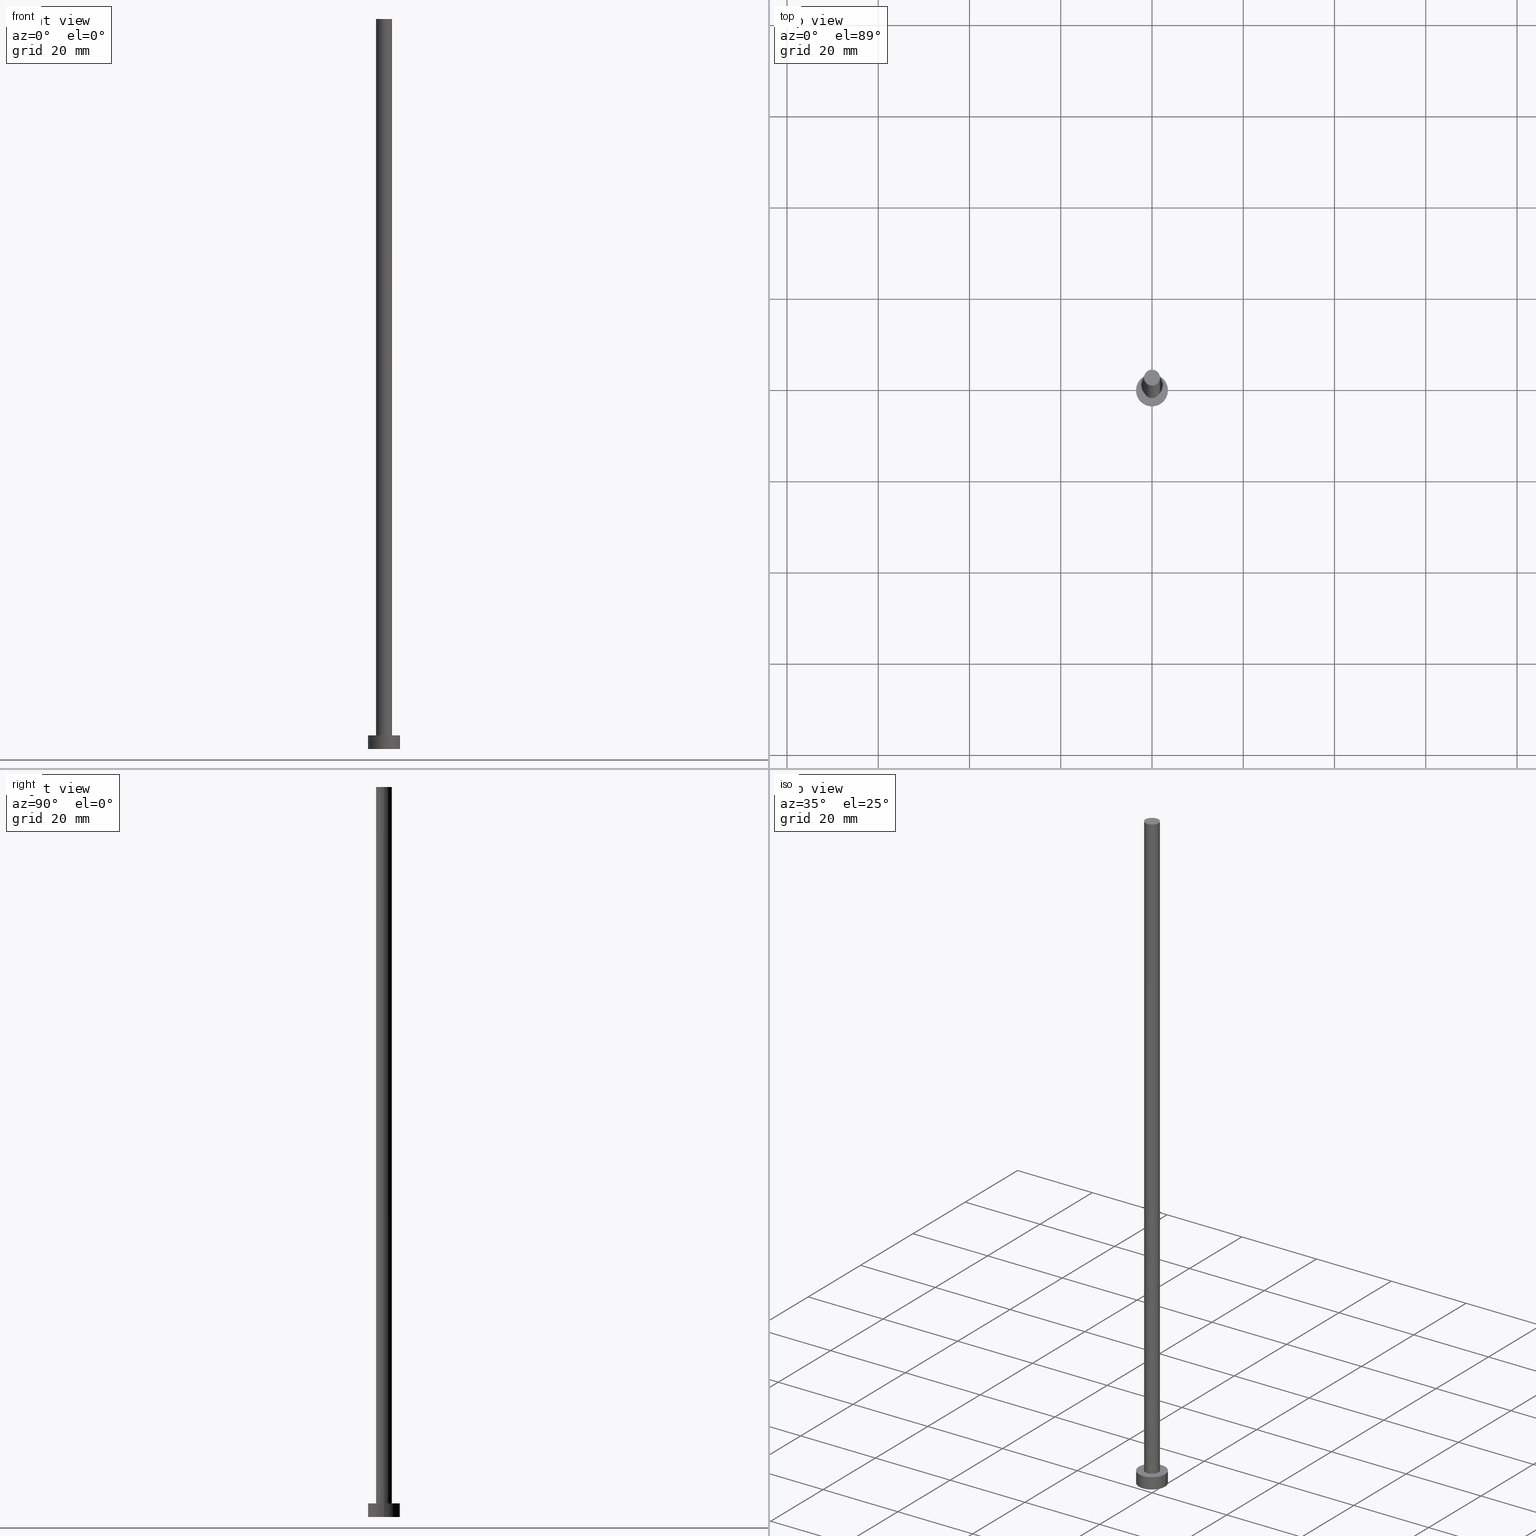
[diagram: canonical four-view strip — front | top / right | iso, engineering-drawing reading convention]
A machine part, canonical four-view strip (front | top / right | iso — engineering-drawing reading convention). The complete STEP part file that produces these views, byte-faithful:
ISO-10303-21;
HEADER;
FILE_DESCRIPTION (( 'STEP AP203' ),
    '1' );
FILE_NAME ('5313.STEP',
    '2023-02-13T13:59:21',
    ( '' ),
    ( '' ),
    'SwSTEP 2.0',
    'SolidWorks 2019',
    '' );
FILE_SCHEMA (( 'CONFIG_CONTROL_DESIGN' ));
ENDSEC;

DATA;
#1 = ORIENTED_EDGE ( 'NONE', *, *, #126, .F. ) ;
#2 = APPROVAL_STATUS ( 'not_yet_approved' ) ;
#3 = AXIS2_PLACEMENT_3D ( 'NONE', #159, #213, #56 ) ;
#4 = ORIENTED_EDGE ( 'NONE', *, *, #37, .T. ) ;
#5 = CC_DESIGN_PERSON_AND_ORGANIZATION_ASSIGNMENT ( #181, #119, ( #169 ) ) ;
#6 = PRODUCT ( '5313', '5313', '', ( #155 ) ) ;
#7 = DIRECTION ( 'NONE',  ( 0.000000000000000000, 0.000000000000000000, 1.000000000000000000 ) ) ;
#8 = DIRECTION ( 'NONE',  ( -0.000000000000000000, -0.000000000000000000, -1.000000000000000000 ) ) ;
#9 = FACE_OUTER_BOUND ( 'NONE', #250, .T. ) ;
#10 = VECTOR ( 'NONE', #193, 1000.000000000000000 ) ;
#11 = DIRECTION ( 'NONE',  ( 0.000000000000000000, 0.000000000000000000, 1.000000000000000000 ) ) ;
#12 = CC_DESIGN_PERSON_AND_ORGANIZATION_ASSIGNMENT ( #190, #210, ( #27 ) ) ;
#13 = ORGANIZATION ( 'NEUR�EN�', 'NEUR�EN�', '' ) ;
#14 = ADVANCED_FACE ( 'NONE', ( #36 ), #132, .T. ) ;
#15 = PRODUCT_DEFINITION ( 'NEZN�M�', '', #169, #245 ) ;
#16 = FACE_OUTER_BOUND ( 'NONE', #82, .T. ) ;
#17 = DIRECTION ( 'NONE',  ( 0.000000000000000000, 0.000000000000000000, 1.000000000000000000 ) ) ;
#18 = ORIENTED_EDGE ( 'NONE', *, *, #52, .F. ) ;
#19 = DIRECTION ( 'NONE',  ( 1.000000000000000000, 0.000000000000000000, 0.000000000000000000 ) ) ;
#20 = AXIS2_PLACEMENT_3D ( 'NONE', #230, #196, #78 ) ;
#21 = CC_DESIGN_DATE_AND_TIME_ASSIGNMENT ( #223, #43, ( #15 ) ) ;
#22 = EDGE_LOOP ( 'NONE', ( #167, #152 ) ) ;
#23 = PERSON_AND_ORGANIZATION ( #131, #13 ) ;
#24 = VERTEX_POINT ( 'NONE', #84 ) ;
#25 = EDGE_CURVE ( 'NONE', #60, #252, #73, .T. ) ;
#26 = APPLICATION_PROTOCOL_DEFINITION ( 'international standard', 'config_control_design', 1994, #31 ) ;
#27 = SECURITY_CLASSIFICATION ( '', '', #89 ) ;
#28 = APPROVAL_DATE_TIME ( #203, #204 ) ;
#29 = APPROVAL_DATE_TIME ( #174, #55 ) ;
#30 = CARTESIAN_POINT ( 'NONE',  ( 0.000000000000000000, 0.000000000000000000, 0.000000000000000000 ) ) ;
#31 = APPLICATION_CONTEXT ( 'configuration controlled 3d designs of mechanical parts and assemblies' ) ;
#32 = AXIS2_PLACEMENT_3D ( 'NONE', #33, #106, #19 ) ;
#33 = CARTESIAN_POINT ( 'NONE',  ( 0.000000000000000000, 0.000000000000000000, 160.0000000000000000 ) ) ;
#34 = VERTEX_POINT ( 'NONE', #102 ) ;
#35 = FACE_OUTER_BOUND ( 'NONE', #63, .T. ) ;
#36 = FACE_OUTER_BOUND ( 'NONE', #238, .T. ) ;
#37 = EDGE_CURVE ( 'NONE', #34, #252, #41, .T. ) ;
#38 = ORIENTED_EDGE ( 'NONE', *, *, #37, .F. ) ;
#39 = CALENDAR_DATE ( 2023, 13, 2 ) ;
#40 = CC_DESIGN_PERSON_AND_ORGANIZATION_ASSIGNMENT ( #225, #46, ( #169 ) ) ;
#41 = LINE ( 'NONE', #177, #221 ) ;
#42 = CARTESIAN_POINT ( 'NONE',  ( 0.000000000000000000, 0.000000000000000000, 160.0000000000000000 ) ) ;
#43 = DATE_TIME_ROLE ( 'creation_date' ) ;
#44 = LOCAL_TIME ( 14, 59, 21.00000000000000000, #189 ) ;
#45 = DIRECTION ( 'NONE',  ( 0.000000000000000000, 0.000000000000000000, 1.000000000000000000 ) ) ;
#46 = PERSON_AND_ORGANIZATION_ROLE ( 'design_supplier' ) ;
#47 = CC_DESIGN_APPROVAL ( #55, ( #27 ) ) ;
#48 = CALENDAR_DATE ( 2023, 13, 2 ) ;
#49 = COORDINATED_UNIVERSAL_TIME_OFFSET ( 1, 0, .AHEAD. ) ;
#50 = AXIS2_PLACEMENT_3D ( 'NONE', #146, #229, #128 ) ;
#51 = CARTESIAN_POINT ( 'NONE',  ( 1.750000000000000000, 2.143131898507868297E-16, 3.000000000000000000 ) ) ;
#52 = EDGE_CURVE ( 'NONE', #252, #60, #80, .T. ) ;
#53 = DIRECTION ( 'NONE',  ( -0.000000000000000000, -0.000000000000000000, -1.000000000000000000 ) ) ;
#54 = DIRECTION ( 'NONE',  ( 0.000000000000000000, 0.000000000000000000, 1.000000000000000000 ) ) ;
#55 = APPROVAL ( #122, 'NEUR�EN�' ) ;
#56 = DIRECTION ( 'NONE',  ( 1.000000000000000000, 0.000000000000000000, 0.000000000000000000 ) ) ;
#57 = ORIENTED_EDGE ( 'NONE', *, *, #254, .T. ) ;
#58 = COORDINATED_UNIVERSAL_TIME_OFFSET ( 1, 0, .AHEAD. ) ;
#59 = MANIFOLD_SOLID_BREP ( 'P�idat vysunut�m3', #185 ) ;
#60 = VERTEX_POINT ( 'NONE', #118 ) ;
#61 = DIRECTION ( 'NONE',  ( -0.000000000000000000, -0.000000000000000000, -1.000000000000000000 ) ) ;
#62 = AXIS2_PLACEMENT_3D ( 'NONE', #42, #173, #151 ) ;
#63 = EDGE_LOOP ( 'NONE', ( #149, #57 ) ) ;
#64 = APPLICATION_PROTOCOL_DEFINITION ( 'international standard', 'config_control_design', 1994, #120 ) ;
#65 = PRODUCT_RELATED_PRODUCT_CATEGORY ( 'detail', '', ( #6 ) ) ;
#66 = SHAPE_DEFINITION_REPRESENTATION ( #117, #233 ) ;
#67 = AXIS2_PLACEMENT_3D ( 'NONE', #94, #7, #74 ) ;
#68 = DIRECTION ( 'NONE',  ( -1.000000000000000000, 0.000000000000000000, 0.000000000000000000 ) ) ;
#69 = ADVANCED_FACE ( 'NONE', ( #9 ), #157, .T. ) ;
#70 = CIRCLE ( 'NONE', #201, 1.750000000000000000 ) ;
#71 = AXIS2_PLACEMENT_3D ( 'NONE', #127, #17, #104 ) ;
#72 = CIRCLE ( 'NONE', #3, 3.500000000000000444 ) ;
#73 = CIRCLE ( 'NONE', #71, 3.500000000000000444 ) ;
#74 = DIRECTION ( 'NONE',  ( 1.000000000000000000, 0.000000000000000000, -0.000000000000000000 ) ) ;
#75 = PLANE ( 'NONE',  #50 ) ;
#76 = DIRECTION ( 'NONE',  ( -1.000000000000000000, 0.000000000000000000, 0.000000000000000000 ) ) ;
#77 = VECTOR ( 'NONE', #53, 1000.000000000000000 ) ;
#78 = DIRECTION ( 'NONE',  ( -1.000000000000000000, 0.000000000000000000, 0.000000000000000000 ) ) ;
#79 = ORIENTED_EDGE ( 'NONE', *, *, #142, .F. ) ;
#80 = CIRCLE ( 'NONE', #156, 3.500000000000000444 ) ;
#81 = PERSON_AND_ORGANIZATION_ROLE ( 'creator' ) ;
#82 = EDGE_LOOP ( 'NONE', ( #144, #85, #154, #38 ) ) ;
#83 = DIRECTION ( 'NONE',  ( 1.000000000000000000, 0.000000000000000000, 0.000000000000000000 ) ) ;
#84 = CARTESIAN_POINT ( 'NONE',  ( -1.750000000000000000, 0.000000000000000000, 160.0000000000000000 ) ) ;
#85 = ORIENTED_EDGE ( 'NONE', *, *, #123, .T. ) ;
#86 = DIRECTION ( 'NONE',  ( -1.000000000000000000, 0.000000000000000000, 0.000000000000000000 ) ) ;
#87 =( NAMED_UNIT ( * ) SI_UNIT ( $, .STERADIAN. ) SOLID_ANGLE_UNIT ( ) );
#88 = ADVANCED_FACE ( 'NONE', ( #139 ), #212, .F. ) ;
#89 = SECURITY_CLASSIFICATION_LEVEL ( 'unclassified' ) ;
#90 = DIRECTION ( 'NONE',  ( 1.000000000000000000, 0.000000000000000000, -0.000000000000000000 ) ) ;
#91 = CC_DESIGN_PERSON_AND_ORGANIZATION_ASSIGNMENT ( #188, #224, ( #6 ) ) ;
#92 = CC_DESIGN_APPROVAL ( #116, ( #169 ) ) ;
#93 = DATE_TIME_ROLE ( 'classification_date' ) ;
#94 = CARTESIAN_POINT ( 'NONE',  ( 0.000000000000000000, 0.000000000000000000, 160.0000000000000000 ) ) ;
#95 = UNCERTAINTY_MEASURE_WITH_UNIT (LENGTH_MEASURE( 1.000000000000000082E-05 ), #200, 'distance_accuracy_value', 'NONE');
#96 = ADVANCED_FACE ( 'NONE', ( #184 ), #124, .T. ) ;
#97 = LOCAL_TIME ( 14, 59, 21.00000000000000000, #153 ) ;
#98 = APPROVAL_PERSON_ORGANIZATION ( #23, #204, #183 ) ;
#99 = DIRECTION ( 'NONE',  ( 0.000000000000000000, 0.000000000000000000, 1.000000000000000000 ) ) ;
#100 = AXIS2_PLACEMENT_3D ( 'NONE', #30, #11, #90 ) ;
#101 = CARTESIAN_POINT ( 'NONE',  ( 0.000000000000000000, 0.000000000000000000, 3.000000000000000000 ) ) ;
#102 = CARTESIAN_POINT ( 'NONE',  ( -3.500000000000000444, 0.000000000000000000, 3.000000000000000000 ) ) ;
#103 = CARTESIAN_POINT ( 'NONE',  ( -1.750000000000000000, 0.000000000000000000, 3.000000000000000000 ) ) ;
#104 = DIRECTION ( 'NONE',  ( 1.000000000000000000, 0.000000000000000000, 0.000000000000000000 ) ) ;
#105 = CIRCLE ( 'NONE', #32, 1.750000000000000000 ) ;
#106 = DIRECTION ( 'NONE',  ( 0.000000000000000000, 0.000000000000000000, 1.000000000000000000 ) ) ;
#107 = ORIENTED_EDGE ( 'NONE', *, *, #158, .T. ) ;
#108 = APPROVAL_STATUS ( 'not_yet_approved' ) ;
#109 = VERTEX_POINT ( 'NONE', #51 ) ;
#110 = ADVANCED_FACE ( 'NONE', ( #16 ), #160, .T. ) ;
#111 = APPROVAL_DATE_TIME ( #133, #116 ) ;
#112 = ORIENTED_EDGE ( 'NONE', *, *, #227, .T. ) ;
#113 = CC_DESIGN_APPROVAL ( #204, ( #15 ) ) ;
#114 = CALENDAR_DATE ( 2023, 13, 2 ) ;
#115 = DIRECTION ( 'NONE',  ( 1.000000000000000000, 0.000000000000000000, 0.000000000000000000 ) ) ;
#116 = APPROVAL ( #2, 'NEUR�EN�' ) ;
#117 = PRODUCT_DEFINITION_SHAPE ( 'NONE', 'NONE',  #15 ) ;
#118 = CARTESIAN_POINT ( 'NONE',  ( 3.500000000000000444, 4.286263797015737088E-16, 0.000000000000000000 ) ) ;
#119 = PERSON_AND_ORGANIZATION_ROLE ( 'creator' ) ;
#120 = APPLICATION_CONTEXT ( 'configuration controlled 3d designs of mechanical parts and assemblies' ) ;
#121 = AXIS2_PLACEMENT_3D ( 'NONE', #136, #226, #68 ) ;
#122 = APPROVAL_STATUS ( 'not_yet_approved' ) ;
#123 = EDGE_CURVE ( 'NONE', #179, #60, #191, .T. ) ;
#124 = PLANE ( 'NONE',  #67 ) ;
#125 = LINE ( 'NONE', #192, #77 ) ;
#126 = EDGE_CURVE ( 'NONE', #24, #199, #105, .T. ) ;
#127 = CARTESIAN_POINT ( 'NONE',  ( 0.000000000000000000, 0.000000000000000000, 0.000000000000000000 ) ) ;
#128 = DIRECTION ( 'NONE',  ( 1.000000000000000000, 0.000000000000000000, -0.000000000000000000 ) ) ;
#129 = DIRECTION ( 'NONE',  ( 1.000000000000000000, 0.000000000000000000, 0.000000000000000000 ) ) ;
#130 = CC_DESIGN_PERSON_AND_ORGANIZATION_ASSIGNMENT ( #236, #81, ( #15 ) ) ;
#131 = PERSON ( 'NEUR�EN�', 'NEUR�EN�', 'NEUR�EN�', ('NEUR�EN�'), ('NEUR�EN�'), ('NEUR�EN�') ) ;
#132 = CYLINDRICAL_SURFACE ( 'NONE', #145, 3.500000000000000444 ) ;
#133 = DATE_AND_TIME ( #39, #237 ) ;
#134 = VERTEX_POINT ( 'NONE', #103 ) ;
#135 = DIRECTION ( 'NONE',  ( 0.000000000000000000, 0.000000000000000000, 1.000000000000000000 ) ) ;
#136 = CARTESIAN_POINT ( 'NONE',  ( 0.000000000000000000, 0.000000000000000000, 160.0000000000000000 ) ) ;
#137 = CARTESIAN_POINT ( 'NONE',  ( 0.000000000000000000, 0.000000000000000000, 3.000000000000000000 ) ) ;
#138 = COORDINATED_UNIVERSAL_TIME_OFFSET ( 1, 0, .AHEAD. ) ;
#139 = FACE_OUTER_BOUND ( 'NONE', #235, .T. ) ;
#140 = CC_DESIGN_SECURITY_CLASSIFICATION ( #27, ( #169 ) ) ;
#141 = CYLINDRICAL_SURFACE ( 'NONE', #228, 1.750000000000000000 ) ;
#142 = EDGE_CURVE ( 'NONE', #34, #179, #72, .T. ) ;
#143 = LOCAL_TIME ( 14, 59, 21.00000000000000000, #138 ) ;
#144 = ORIENTED_EDGE ( 'NONE', *, *, #254, .F. ) ;
#145 = AXIS2_PLACEMENT_3D ( 'NONE', #219, #195, #76 ) ;
#146 = CARTESIAN_POINT ( 'NONE',  ( 0.000000000000000000, 0.000000000000000000, 3.000000000000000000 ) ) ;
#147 = ORIENTED_EDGE ( 'NONE', *, *, #25, .F. ) ;
#148 = CARTESIAN_POINT ( 'NONE',  ( -1.750000000000000000, 0.000000000000000000, 160.0000000000000000 ) ) ;
#149 = ORIENTED_EDGE ( 'NONE', *, *, #142, .T. ) ;
#150 = CIRCLE ( 'NONE', #62, 1.750000000000000000 ) ;
#151 = DIRECTION ( 'NONE',  ( 1.000000000000000000, 0.000000000000000000, 0.000000000000000000 ) ) ;
#152 = ORIENTED_EDGE ( 'NONE', *, *, #244, .T. ) ;
#153 = COORDINATED_UNIVERSAL_TIME_OFFSET ( 1, 0, .AHEAD. ) ;
#154 = ORIENTED_EDGE ( 'NONE', *, *, #25, .T. ) ;
#155 = MECHANICAL_CONTEXT ( 'NONE', #120, 'mechanical' ) ;
#156 = AXIS2_PLACEMENT_3D ( 'NONE', #232, #54, #187 ) ;
#157 = CYLINDRICAL_SURFACE ( 'NONE', #121, 1.750000000000000000 ) ;
#158 = EDGE_CURVE ( 'NONE', #199, #109, #125, .T. ) ;
#159 = CARTESIAN_POINT ( 'NONE',  ( 0.000000000000000000, 0.000000000000000000, 3.000000000000000000 ) ) ;
#160 = CYLINDRICAL_SURFACE ( 'NONE', #20, 3.500000000000000444 ) ;
#161 = LOCAL_TIME ( 14, 59, 21.00000000000000000, #49 ) ;
#162 = DIRECTION ( 'NONE',  ( -0.000000000000000000, -0.000000000000000000, -1.000000000000000000 ) ) ;
#163 = DIRECTION ( 'NONE',  ( 1.000000000000000000, 0.000000000000000000, 0.000000000000000000 ) ) ;
#164 = ORIENTED_EDGE ( 'NONE', *, *, #227, .F. ) ;
#165 = CC_DESIGN_DATE_AND_TIME_ASSIGNMENT ( #241, #93, ( #27 ) ) ;
#166 = DIRECTION ( 'NONE',  ( 0.000000000000000000, 0.000000000000000000, 1.000000000000000000 ) ) ;
#167 = ORIENTED_EDGE ( 'NONE', *, *, #126, .T. ) ;
#168 = ORIENTED_EDGE ( 'NONE', *, *, #52, .T. ) ;
#169 = PRODUCT_DEFINITION_FORMATION_WITH_SPECIFIED_SOURCE ( 'LIBOVOLN�', '', #6, .NOT_KNOWN. ) ;
#170 = CARTESIAN_POINT ( 'NONE',  ( 0.000000000000000000, 0.000000000000000000, 3.000000000000000000 ) ) ;
#171 = EDGE_CURVE ( 'NONE', #134, #109, #242, .T. ) ;
#172 = EDGE_LOOP ( 'NONE', ( #197, #1, #112, #182 ) ) ;
#173 = DIRECTION ( 'NONE',  ( 0.000000000000000000, 0.000000000000000000, 1.000000000000000000 ) ) ;
#174 = DATE_AND_TIME ( #48, #161 ) ;
#175 = ADVANCED_FACE ( 'NONE', ( #176, #35 ), #75, .T. ) ;
#176 = FACE_BOUND ( 'NONE', #180, .T. ) ;
#177 = CARTESIAN_POINT ( 'NONE',  ( -3.500000000000000444, 0.000000000000000000, 3.000000000000000000 ) ) ;
#178 = VECTOR ( 'NONE', #8, 1000.000000000000000 ) ;
#179 = VERTEX_POINT ( 'NONE', #248 ) ;
#180 = EDGE_LOOP ( 'NONE', ( #240, #217 ) ) ;
#181 = PERSON_AND_ORGANIZATION ( #131, #13 ) ;
#182 = ORIENTED_EDGE ( 'NONE', *, *, #171, .T. ) ;
#183 = APPROVAL_ROLE ( '' ) ;
#184 = FACE_OUTER_BOUND ( 'NONE', #22, .T. ) ;
#185 = CLOSED_SHELL ( 'NONE', ( #69, #110, #14, #175, #88, #209, #96 ) ) ;
#186 =( NAMED_UNIT ( * ) PLANE_ANGLE_UNIT ( ) SI_UNIT ( $, .RADIAN. ) );
#187 = DIRECTION ( 'NONE',  ( 1.000000000000000000, 0.000000000000000000, 0.000000000000000000 ) ) ;
#188 = PERSON_AND_ORGANIZATION ( #131, #13 ) ;
#189 = COORDINATED_UNIVERSAL_TIME_OFFSET ( 1, 0, .AHEAD. ) ;
#190 = PERSON_AND_ORGANIZATION ( #131, #13 ) ;
#191 = LINE ( 'NONE', #246, #10 ) ;
#192 = CARTESIAN_POINT ( 'NONE',  ( 1.750000000000000000, 2.143131898507868297E-16, 160.0000000000000000 ) ) ;
#193 = DIRECTION ( 'NONE',  ( -0.000000000000000000, -0.000000000000000000, -1.000000000000000000 ) ) ;
#194 = FACE_OUTER_BOUND ( 'NONE', #172, .T. ) ;
#195 = DIRECTION ( 'NONE',  ( -0.000000000000000000, -0.000000000000000000, -1.000000000000000000 ) ) ;
#196 = DIRECTION ( 'NONE',  ( -0.000000000000000000, -0.000000000000000000, -1.000000000000000000 ) ) ;
#197 = ORIENTED_EDGE ( 'NONE', *, *, #158, .F. ) ;
#198 = LINE ( 'NONE', #148, #178 ) ;
#199 = VERTEX_POINT ( 'NONE', #216 ) ;
#200 =( LENGTH_UNIT ( ) NAMED_UNIT ( * ) SI_UNIT ( .MILLI., .METRE. ) );
#201 = AXIS2_PLACEMENT_3D ( 'NONE', #137, #135, #115 ) ;
#202 = CARTESIAN_POINT ( 'NONE',  ( -3.500000000000000444, 0.000000000000000000, 0.000000000000000000 ) ) ;
#203 = DATE_AND_TIME ( #255, #143 ) ;
#204 = APPROVAL ( #108, 'NEUR�EN�' ) ;
#205 = APPROVAL_ROLE ( '' ) ;
#206 = AXIS2_PLACEMENT_3D ( 'NONE', #239, #166, #129 ) ;
#207 =( GEOMETRIC_REPRESENTATION_CONTEXT ( 3 ) GLOBAL_UNCERTAINTY_ASSIGNED_CONTEXT ( ( #95 ) ) GLOBAL_UNIT_ASSIGNED_CONTEXT ( ( #200, #186, #87 ) ) REPRESENTATION_CONTEXT ( 'NONE', 'WORKASPACE' ) );
#208 = CALENDAR_DATE ( 2023, 13, 2 ) ;
#209 = ADVANCED_FACE ( 'NONE', ( #194 ), #141, .T. ) ;
#210 = PERSON_AND_ORGANIZATION_ROLE ( 'classification_officer' ) ;
#211 = CIRCLE ( 'NONE', #214, 3.500000000000000444 ) ;
#212 = PLANE ( 'NONE',  #100 ) ;
#213 = DIRECTION ( 'NONE',  ( 0.000000000000000000, 0.000000000000000000, 1.000000000000000000 ) ) ;
#214 = AXIS2_PLACEMENT_3D ( 'NONE', #170, #45, #83 ) ;
#215 = ORIENTED_EDGE ( 'NONE', *, *, #123, .F. ) ;
#216 = CARTESIAN_POINT ( 'NONE',  ( 1.750000000000000000, 2.143131898507868297E-16, 160.0000000000000000 ) ) ;
#217 = ORIENTED_EDGE ( 'NONE', *, *, #247, .F. ) ;
#218 = AXIS2_PLACEMENT_3D ( 'NONE', #101, #99, #163 ) ;
#219 = CARTESIAN_POINT ( 'NONE',  ( 0.000000000000000000, 0.000000000000000000, 3.000000000000000000 ) ) ;
#220 = APPROVAL_ROLE ( '' ) ;
#221 = VECTOR ( 'NONE', #162, 1000.000000000000000 ) ;
#222 = ORIENTED_EDGE ( 'NONE', *, *, #247, .T. ) ;
#223 = DATE_AND_TIME ( #114, #97 ) ;
#224 = PERSON_AND_ORGANIZATION_ROLE ( 'design_owner' ) ;
#225 = PERSON_AND_ORGANIZATION ( #131, #13 ) ;
#226 = DIRECTION ( 'NONE',  ( -0.000000000000000000, -0.000000000000000000, -1.000000000000000000 ) ) ;
#227 = EDGE_CURVE ( 'NONE', #24, #134, #198, .T. ) ;
#228 = AXIS2_PLACEMENT_3D ( 'NONE', #249, #61, #86 ) ;
#229 = DIRECTION ( 'NONE',  ( 0.000000000000000000, 0.000000000000000000, 1.000000000000000000 ) ) ;
#230 = CARTESIAN_POINT ( 'NONE',  ( 0.000000000000000000, 0.000000000000000000, 3.000000000000000000 ) ) ;
#231 = APPROVAL_PERSON_ORGANIZATION ( #243, #55, #205 ) ;
#232 = CARTESIAN_POINT ( 'NONE',  ( 0.000000000000000000, 0.000000000000000000, 0.000000000000000000 ) ) ;
#233 = ADVANCED_BREP_SHAPE_REPRESENTATION ( '5313', ( #59, #206 ), #207 ) ;
#234 = PERSON_AND_ORGANIZATION ( #131, #13 ) ;
#235 = EDGE_LOOP ( 'NONE', ( #18, #147 ) ) ;
#236 = PERSON_AND_ORGANIZATION ( #131, #13 ) ;
#237 = LOCAL_TIME ( 14, 59, 21.00000000000000000, #58 ) ;
#238 = EDGE_LOOP ( 'NONE', ( #215, #79, #4, #168 ) ) ;
#239 = CARTESIAN_POINT ( 'NONE',  ( 0.000000000000000000, 0.000000000000000000, 0.000000000000000000 ) ) ;
#240 = ORIENTED_EDGE ( 'NONE', *, *, #171, .F. ) ;
#241 = DATE_AND_TIME ( #208, #44 ) ;
#242 = CIRCLE ( 'NONE', #218, 1.750000000000000000 ) ;
#243 = PERSON_AND_ORGANIZATION ( #131, #13 ) ;
#244 = EDGE_CURVE ( 'NONE', #199, #24, #150, .T. ) ;
#245 = DESIGN_CONTEXT ( 'detailed design', #31, 'design' ) ;
#246 = CARTESIAN_POINT ( 'NONE',  ( 3.500000000000000444, 4.286263797015737088E-16, 3.000000000000000000 ) ) ;
#247 = EDGE_CURVE ( 'NONE', #109, #134, #70, .T. ) ;
#248 = CARTESIAN_POINT ( 'NONE',  ( 3.500000000000000444, 4.286263797015737088E-16, 3.000000000000000000 ) ) ;
#249 = CARTESIAN_POINT ( 'NONE',  ( 0.000000000000000000, 0.000000000000000000, 160.0000000000000000 ) ) ;
#250 = EDGE_LOOP ( 'NONE', ( #253, #107, #222, #164 ) ) ;
#251 = APPROVAL_PERSON_ORGANIZATION ( #234, #116, #220 ) ;
#252 = VERTEX_POINT ( 'NONE', #202 ) ;
#253 = ORIENTED_EDGE ( 'NONE', *, *, #244, .F. ) ;
#254 = EDGE_CURVE ( 'NONE', #179, #34, #211, .T. ) ;
#255 = CALENDAR_DATE ( 2023, 13, 2 ) ;
ENDSEC;
END-ISO-10303-21;
